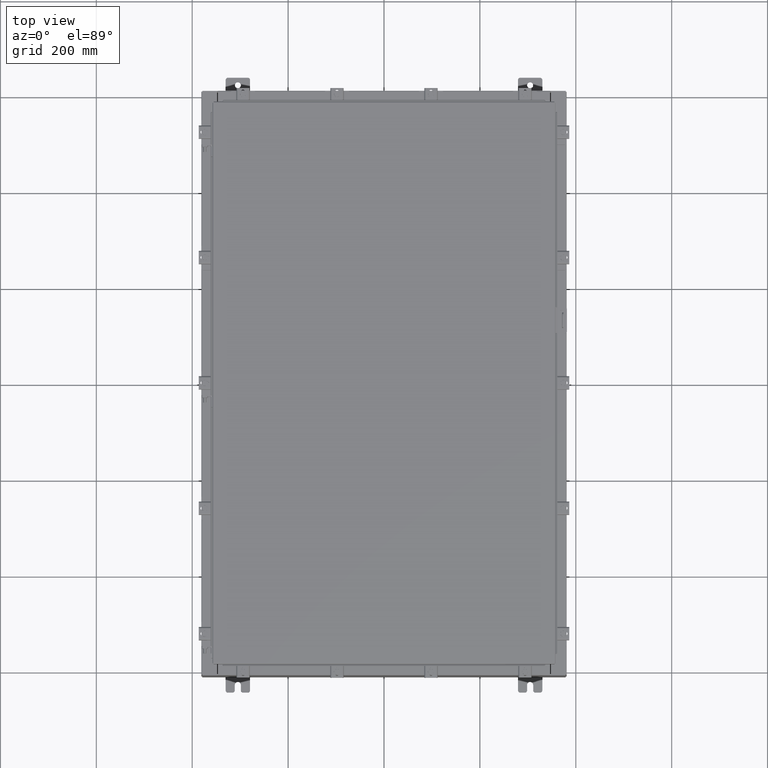
[diagram: clean part render]
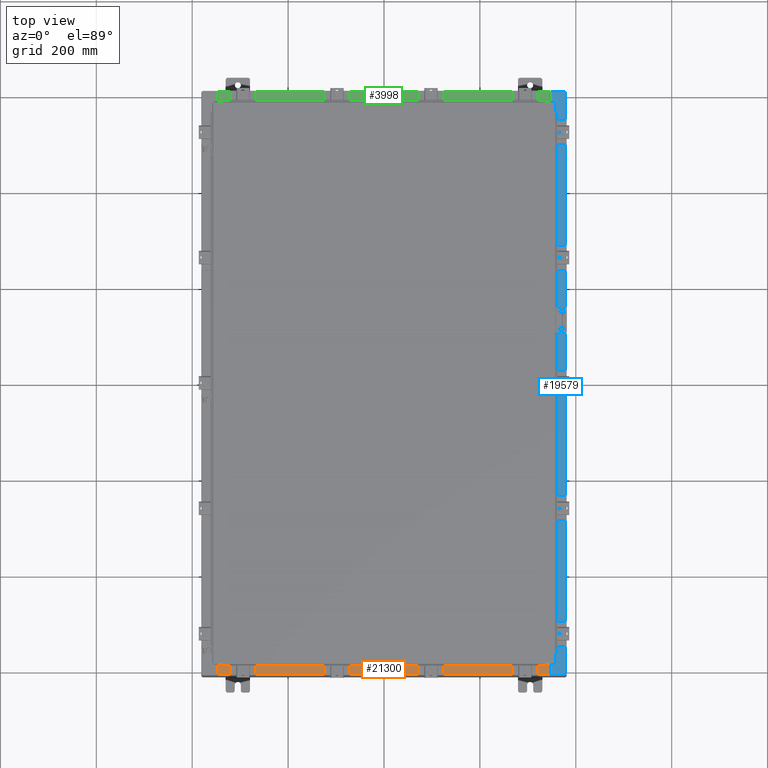
[diagram: same view with three faces highlighted in distinct colors, each labeled with its STEP entity id]
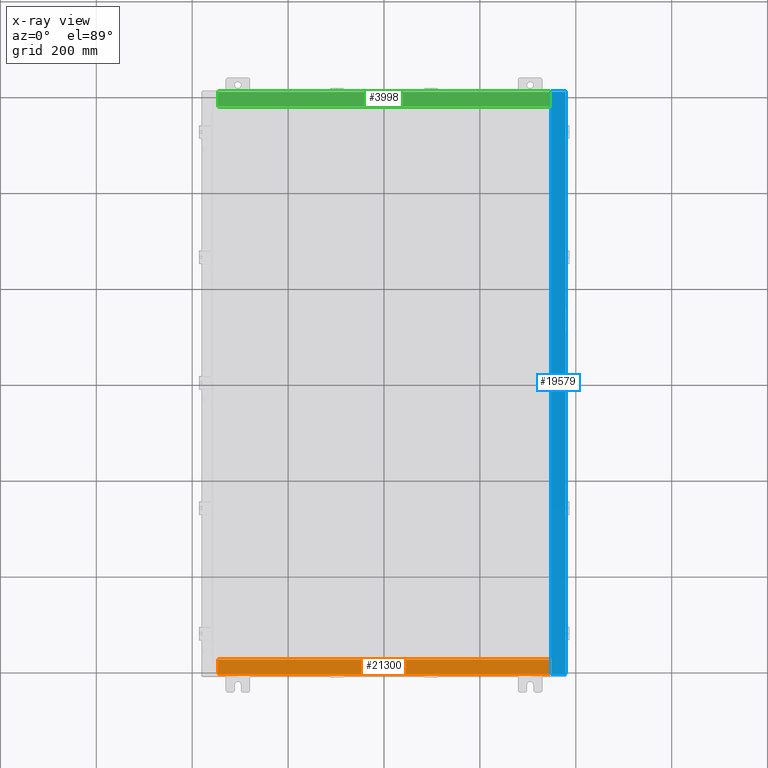
[diagram: x-ray of the same camera — body ghosted, the three highlighted faces saturated]
A machine part, top view with three faces highlighted in distinct colors.
The next image is the same camera in x-ray (body ghosted, the three faces saturated) — at least one of them is partly hidden behind the body in this view.
Their STEP definitions:

[orange] entity #21300 — the highlighted planar face has unit normal (-0, -0, 1).
#174 = ORIENTED_EDGE ( 'NONE', *, *, #24019, .T. ) ;
#1999 = PLANE ( 'NONE',  #18082 ) ;
#3920 = CARTESIAN_POINT ( 'NONE',  ( 0.0000000000000000000, 1.782631094477737600E-014, 5.000000000000000000 ) ) ;
#4639 = VECTOR ( 'NONE', #11397, 39.37007874015748100 ) ;
#4752 = ORIENTED_EDGE ( 'NONE', *, *, #20665, .F. ) ;
#4814 = ORIENTED_EDGE ( 'NONE', *, *, #16093, .F. ) ;
#4868 = CARTESIAN_POINT ( 'NONE',  ( 13.63719999999999800, -0.08770000000000047200, 5.000000000000000000 ) ) ;
#5735 = FACE_OUTER_BOUND ( 'NONE', #22186, .T. ) ;
#5840 = DIRECTION ( 'NONE',  ( 0.0000000000000000000, -1.000000000000000000, 3.566381192773190000E-015 ) ) ;
#6557 = DIRECTION ( 'NONE',  ( -1.000000000000000000, -4.006464660875052000E-017, 1.428858021605520200E-031 ) ) ;
#7538 = LINE ( 'NONE', #11648, #17029 ) ;
#7935 = DIRECTION ( 'NONE',  ( -0.0000000000000000000, 1.000000000000000000, -3.566381192773190000E-015 ) ) ;
#9066 = VERTEX_POINT ( 'NONE', #4868 ) ;
#9393 = EDGE_CURVE ( 'NONE', #16897, #24122, #9689, .T. ) ;
#9506 = CARTESIAN_POINT ( 'NONE',  ( 13.63719999999999800, -1.287299999999999900, 5.000000000000002700 ) ) ;
#9636 = LINE ( 'NONE', #16099, #24167 ) ;
#9689 = LINE ( 'NONE', #9506, #4639 ) ;
#11397 = DIRECTION ( 'NONE',  ( -1.000000000000000000, 0.0000000000000000000, 0.0000000000000000000 ) ) ;
#11648 = CARTESIAN_POINT ( 'NONE',  ( -13.63720000000000400, -0.07469999999999973900, 5.000000000000000000 ) ) ;
#12466 = CARTESIAN_POINT ( 'NONE',  ( 13.63719999999999800, -1.300299999999999800, 5.000000000000004400 ) ) ;
#12727 = LINE ( 'NONE', #12466, #17190 ) ;
#15958 = VERTEX_POINT ( 'NONE', #21632 ) ;
#16093 = EDGE_CURVE ( 'NONE', #9066, #16897, #12727, .T. ) ;
#16099 = CARTESIAN_POINT ( 'NONE',  ( 3.513669507588167300E-018, -0.08770000000000081900, 5.000000000000000000 ) ) ;
#16897 = VERTEX_POINT ( 'NONE', #23651 ) ;
#17029 = VECTOR ( 'NONE', #7935, 39.37007874015748100 ) ;
#17190 = VECTOR ( 'NONE', #23845, 39.37007874015748100 ) ;
#17194 = DIRECTION ( 'NONE',  ( 0.0000000000000000000, 3.566381192773190000E-015, 1.000000000000000000 ) ) ;
#18082 = AXIS2_PLACEMENT_3D ( 'NONE', #3920, #17194, #5840 ) ;
#19246 = ORIENTED_EDGE ( 'NONE', *, *, #9393, .F. ) ;
#20665 = EDGE_CURVE ( 'NONE', #24122, #15958, #7538, .T. ) ;
#21300 = ADVANCED_FACE ( 'NONE', ( #5735 ), #1999, .T. ) ;
#21632 = CARTESIAN_POINT ( 'NONE',  ( -13.63720000000000400, -0.08770000000000081900, 5.000000000000000000 ) ) ;
#22001 = CARTESIAN_POINT ( 'NONE',  ( -13.63720000000000400, -1.287299999999999200, 5.000000000000004400 ) ) ;
#22186 = EDGE_LOOP ( 'NONE', ( #4752, #19246, #4814, #174 ) ) ;
#23651 = CARTESIAN_POINT ( 'NONE',  ( 13.63719999999999800, -1.287299999999999900, 5.000000000000004400 ) ) ;
#23845 = DIRECTION ( 'NONE',  ( -0.0000000000000000000, -1.000000000000000000, 3.566381192773190000E-015 ) ) ;
#24019 = EDGE_CURVE ( 'NONE', #9066, #15958, #9636, .T. ) ;
#24122 = VERTEX_POINT ( 'NONE', #22001 ) ;
#24167 = VECTOR ( 'NONE', #6557, 39.37007874015748100 ) ;

[blue] entity #19579 — the highlighted planar face has unit normal (-0, 0, -1).
#77 = AXIS2_PLACEMENT_3D ( 'NONE', #24269, #1527, #14832 ) ;
#471 = ORIENTED_EDGE ( 'NONE', *, *, #4182, .F. ) ;
#484 = EDGE_CURVE ( 'NONE', #8398, #13338, #16905, .T. ) ;
#583 = VECTOR ( 'NONE', #5502, 39.37007874015748100 ) ;
#1239 = LINE ( 'NONE', #9649, #15827 ) ;
#1527 = DIRECTION ( 'NONE',  ( -5.349571789159788500E-015, 0.0000000000000000000, -1.000000000000000000 ) ) ;
#1546 = EDGE_CURVE ( 'NONE', #21487, #17712, #14189, .T. ) ;
#1666 = VECTOR ( 'NONE', #23359, 39.37007874015748100 ) ;
#1700 = ORIENTED_EDGE ( 'NONE', *, *, #1546, .F. ) ;
#2216 = EDGE_CURVE ( 'NONE', #17405, #6308, #6729, .T. ) ;
#2451 = DIRECTION ( 'NONE',  ( 5.349571789159788500E-015, 0.0000000000000000000, 1.000000000000000000 ) ) ;
#2878 = CARTESIAN_POINT ( 'NONE',  ( 13.69970000000003400, -23.92529999999998200, 9.925300000000008900 ) ) ;
#3931 = VERTEX_POINT ( 'NONE', #14993 ) ;
#4182 = EDGE_CURVE ( 'NONE', #6308, #7234, #16441, .T. ) ;
#4317 = ORIENTED_EDGE ( 'NONE', *, *, #2216, .F. ) ;
#4354 = CARTESIAN_POINT ( 'NONE',  ( 13.69970000000003400, -4.389053564852444200E-030, 9.925300000000008900 ) ) ;
#4975 = DIRECTION ( 'NONE',  ( 1.000000000000000000, -3.566381192773192400E-015, -5.349571789159789300E-015 ) ) ;
#5236 = VECTOR ( 'NONE', #18831, 39.37007874015748100 ) ;
#5388 = VECTOR ( 'NONE', #6521, 39.37007874015748100 ) ;
#5502 = DIRECTION ( 'NONE',  ( -0.0000000000000000000, -1.000000000000000000, -0.0000000000000000000 ) ) ;
#5659 = LINE ( 'NONE', #4354, #15163 ) ;
#6037 = CARTESIAN_POINT ( 'NONE',  ( 13.75005000000003500, 22.63109999999997900, 9.925300000000008900 ) ) ;
#6308 = VERTEX_POINT ( 'NONE', #12019 ) ;
#6521 = DIRECTION ( 'NONE',  ( -0.0000000000000000000, 1.000000000000000000, -0.0000000000000000000 ) ) ;
#6725 = CARTESIAN_POINT ( 'NONE',  ( 13.69970000000003400, 23.92529999999998900, 9.925300000000008900 ) ) ;
#6729 = LINE ( 'NONE', #15725, #1666 ) ;
#7095 = EDGE_CURVE ( 'NONE', #3931, #17405, #16066, .T. ) ;
#7234 = VERTEX_POINT ( 'NONE', #8778 ) ;
#7287 = CARTESIAN_POINT ( 'NONE',  ( 13.69970000000003400, 22.63109999999997900, 9.925300000000008900 ) ) ;
#7803 = CARTESIAN_POINT ( 'NONE',  ( 14.91230000000003400, -23.92529999999998600, 9.925300000000001800 ) ) ;
#7948 = DIRECTION ( 'NONE',  ( -1.000000000000000000, 0.0000000000000000000, 0.0000000000000000000 ) ) ;
#8168 = FACE_OUTER_BOUND ( 'NONE', #8241, .T. ) ;
#8241 = EDGE_LOOP ( 'NONE', ( #11367, #16260, #11688, #17817, #20220, #10416, #20279, #471, #4317, #12949, #21361, #1700 ) ) ;
#8293 = AXIS2_PLACEMENT_3D ( 'NONE', #21453, #10075, #23362 ) ;
#8398 = VERTEX_POINT ( 'NONE', #2878 ) ;
#8778 = CARTESIAN_POINT ( 'NONE',  ( 13.75005000000003500, 22.63109999999997900, 9.925300000000008900 ) ) ;
#8966 = VERTEX_POINT ( 'NONE', #23539 ) ;
#9556 = LINE ( 'NONE', #17828, #19078 ) ;
#9574 = VECTOR ( 'NONE', #7948, 39.37007874015748100 ) ;
#9649 = CARTESIAN_POINT ( 'NONE',  ( 5.335691853495967900E-014, 23.92529999999998900, 9.925300000000083500 ) ) ;
#10075 = DIRECTION ( 'NONE',  ( 5.349571789159788500E-015, 0.0000000000000000000, 1.000000000000000000 ) ) ;
#10416 = ORIENTED_EDGE ( 'NONE', *, *, #14511, .T. ) ;
#10650 = VERTEX_POINT ( 'NONE', #7287 ) ;
#11005 = PLANE ( 'NONE',  #77 ) ;
#11367 = ORIENTED_EDGE ( 'NONE', *, *, #16872, .F. ) ;
#11688 = ORIENTED_EDGE ( 'NONE', *, *, #484, .T. ) ;
#11837 = VECTOR ( 'NONE', #4975, 39.37007874015748100 ) ;
#12019 = CARTESIAN_POINT ( 'NONE',  ( 13.75005000000003500, 22.59374999999997900, 9.925300000000008900 ) ) ;
#12021 = EDGE_CURVE ( 'NONE', #7234, #10650, #19672, .T. ) ;
#12103 = DIRECTION ( 'NONE',  ( 1.000000000000000000, 0.0000000000000000000, 0.0000000000000000000 ) ) ;
#12949 = ORIENTED_EDGE ( 'NONE', *, *, #7095, .F. ) ;
#13338 = VERTEX_POINT ( 'NONE', #7803 ) ;
#13341 = VECTOR ( 'NONE', #12103, 39.37007874015748100 ) ;
#13530 = EDGE_CURVE ( 'NONE', #17712, #3931, #9556, .T. ) ;
#13598 = CARTESIAN_POINT ( 'NONE',  ( 13.71270000000003700, 22.59374999999997900, 9.925300000000008900 ) ) ;
#13840 = CARTESIAN_POINT ( 'NONE',  ( 13.75005000000003500, -22.61242499999997700, 9.925300000000008900 ) ) ;
#14078 = CARTESIAN_POINT ( 'NONE',  ( 13.71270000000003700, -22.59374999999997900, 9.925300000000008900 ) ) ;
#14189 = CIRCLE ( 'NONE', #21936, 0.01867499999999949400 ) ;
#14511 = EDGE_CURVE ( 'NONE', #24054, #10650, #5659, .T. ) ;
#14832 = DIRECTION ( 'NONE',  ( -1.000000000000000000, 0.0000000000000000000, 5.349571789159788500E-015 ) ) ;
#14906 = EDGE_CURVE ( 'NONE', #17066, #13338, #15185, .T. ) ;
#14993 = CARTESIAN_POINT ( 'NONE',  ( 13.71270000000003700, -22.59374999999997900, 9.925300000000008900 ) ) ;
#15163 = VECTOR ( 'NONE', #17699, 39.37007874015748100 ) ;
#15185 = LINE ( 'NONE', #18780, #583 ) ;
#15336 = LINE ( 'NONE', #20646, #5236 ) ;
#15725 = CARTESIAN_POINT ( 'NONE',  ( 13.71270000000003700, 22.59374999999997900, 9.925300000000008900 ) ) ;
#15751 = DIRECTION ( 'NONE',  ( 1.000000000000000000, 0.0000000000000000000, 0.0000000000000000000 ) ) ;
#15827 = VECTOR ( 'NONE', #21030, 39.37007874015748100 ) ;
#16066 = LINE ( 'NONE', #14078, #5388 ) ;
#16260 = ORIENTED_EDGE ( 'NONE', *, *, #22904, .T. ) ;
#16441 = CIRCLE ( 'NONE', #8293, 0.01867499999999949400 ) ;
#16872 = EDGE_CURVE ( 'NONE', #8966, #21487, #23446, .T. ) ;
#16905 = LINE ( 'NONE', #20160, #11837 ) ;
#17066 = VERTEX_POINT ( 'NONE', #24055 ) ;
#17405 = VERTEX_POINT ( 'NONE', #13598 ) ;
#17684 = CARTESIAN_POINT ( 'NONE',  ( 13.75005000000003500, -22.63109999999997900, 9.925300000000008900 ) ) ;
#17699 = DIRECTION ( 'NONE',  ( -3.203758888773075000E-031, -1.000000000000000000, 1.713873817065035400E-045 ) ) ;
#17712 = VERTEX_POINT ( 'NONE', #22131 ) ;
#17817 = ORIENTED_EDGE ( 'NONE', *, *, #14906, .F. ) ;
#17828 = CARTESIAN_POINT ( 'NONE',  ( 13.75005000000003500, -22.59374999999997900, 9.925300000000008900 ) ) ;
#18780 = CARTESIAN_POINT ( 'NONE',  ( 14.91230000000003400, -23.92529999999998200, 9.925300000000001800 ) ) ;
#18831 = DIRECTION ( 'NONE',  ( -3.203758888773075000E-031, -1.000000000000000000, 1.713873817065035400E-045 ) ) ;
#19078 = VECTOR ( 'NONE', #23481, 39.37007874015748100 ) ;
#19579 = ADVANCED_FACE ( 'NONE', ( #8168 ), #11005, .F. ) ;
#19601 = CARTESIAN_POINT ( 'NONE',  ( 13.69970000000003400, -22.63109999999997900, 9.925300000000008900 ) ) ;
#19672 = LINE ( 'NONE', #6037, #9574 ) ;
#20160 = CARTESIAN_POINT ( 'NONE',  ( -3.196982141649654200E-014, -23.92529999999993300, 9.925300000000083500 ) ) ;
#20220 = ORIENTED_EDGE ( 'NONE', *, *, #21315, .T. ) ;
#20279 = ORIENTED_EDGE ( 'NONE', *, *, #12021, .F. ) ;
#20646 = CARTESIAN_POINT ( 'NONE',  ( 13.69970000000003400, -4.389053564852444200E-030, 9.925300000000008900 ) ) ;
#21030 = DIRECTION ( 'NONE',  ( -1.000000000000000000, 0.0000000000000000000, 5.349571789159789300E-015 ) ) ;
#21315 = EDGE_CURVE ( 'NONE', #17066, #24054, #1239, .T. ) ;
#21361 = ORIENTED_EDGE ( 'NONE', *, *, #13530, .F. ) ;
#21453 = CARTESIAN_POINT ( 'NONE',  ( 13.75005000000003500, 22.61242499999997700, 9.925300000000008900 ) ) ;
#21487 = VERTEX_POINT ( 'NONE', #17684 ) ;
#21936 = AXIS2_PLACEMENT_3D ( 'NONE', #13840, #2451, #15751 ) ;
#22131 = CARTESIAN_POINT ( 'NONE',  ( 13.75005000000003500, -22.59374999999997900, 9.925300000000008900 ) ) ;
#22904 = EDGE_CURVE ( 'NONE', #8966, #8398, #15336, .T. ) ;
#23359 = DIRECTION ( 'NONE',  ( 1.000000000000000000, 0.0000000000000000000, 0.0000000000000000000 ) ) ;
#23362 = DIRECTION ( 'NONE',  ( 1.000000000000000000, 0.0000000000000000000, 0.0000000000000000000 ) ) ;
#23446 = LINE ( 'NONE', #19601, #13341 ) ;
#23481 = DIRECTION ( 'NONE',  ( -1.000000000000000000, 0.0000000000000000000, 0.0000000000000000000 ) ) ;
#23539 = CARTESIAN_POINT ( 'NONE',  ( 13.69970000000003400, -22.63109999999997900, 9.925300000000008900 ) ) ;
#24054 = VERTEX_POINT ( 'NONE', #6725 ) ;
#24055 = CARTESIAN_POINT ( 'NONE',  ( 14.91230000000003400, 23.92529999999998600, 9.925300000000001800 ) ) ;
#24269 = CARTESIAN_POINT ( 'NONE',  ( 5.335691853495967900E-014, 0.0000000000000000000, 9.925300000000083500 ) ) ;

[green] entity #3998 — the highlighted planar face has unit normal (0, 0, 1).
#269 = VERTEX_POINT ( 'NONE', #7794 ) ;
#1951 = VECTOR ( 'NONE', #16656, 39.37007874015748100 ) ;
#2326 = LINE ( 'NONE', #24462, #11247 ) ;
#3468 = LINE ( 'NONE', #7940, #8520 ) ;
#3780 = CARTESIAN_POINT ( 'NONE',  ( 0.0000000000000000000, 1.782631094477737600E-014, 5.000000000000000000 ) ) ;
#3863 = DIRECTION ( 'NONE',  ( 0.0000000000000000000, 3.566381192773190000E-015, 1.000000000000000000 ) ) ;
#3998 = ADVANCED_FACE ( 'NONE', ( #14382 ), #7600, .T. ) ;
#5565 = DIRECTION ( 'NONE',  ( -1.000000000000000000, 0.0000000000000000000, 0.0000000000000000000 ) ) ;
#7600 = PLANE ( 'NONE',  #16393 ) ;
#7759 = CARTESIAN_POINT ( 'NONE',  ( 13.63719999999999800, -1.287299999999999900, 5.000000000000004400 ) ) ;
#7794 = CARTESIAN_POINT ( 'NONE',  ( -13.63720000000000400, -0.08770000000000081900, 5.000000000000000000 ) ) ;
#7940 = CARTESIAN_POINT ( 'NONE',  ( -13.63720000000000400, -0.07469999999999973900, 5.000000000000000000 ) ) ;
#8520 = VECTOR ( 'NONE', #11742, 39.37007874015748100 ) ;
#8950 = EDGE_CURVE ( 'NONE', #19750, #269, #3468, .T. ) ;
#11247 = VECTOR ( 'NONE', #5565, 39.37007874015748100 ) ;
#11381 = EDGE_CURVE ( 'NONE', #16539, #269, #17020, .T. ) ;
#11742 = DIRECTION ( 'NONE',  ( -0.0000000000000000000, 1.000000000000000000, -3.566381192773190000E-015 ) ) ;
#13553 = CARTESIAN_POINT ( 'NONE',  ( 13.63719999999999800, -0.08770000000000047200, 5.000000000000000000 ) ) ;
#14121 = ORIENTED_EDGE ( 'NONE', *, *, #17226, .F. ) ;
#14382 = FACE_OUTER_BOUND ( 'NONE', #22107, .T. ) ;
#16393 = AXIS2_PLACEMENT_3D ( 'NONE', #3780, #3863, #17133 ) ;
#16539 = VERTEX_POINT ( 'NONE', #13553 ) ;
#16656 = DIRECTION ( 'NONE',  ( -0.0000000000000000000, -1.000000000000000000, 3.566381192773190000E-015 ) ) ;
#16740 = ORIENTED_EDGE ( 'NONE', *, *, #22804, .F. ) ;
#17020 = LINE ( 'NONE', #23167, #21488 ) ;
#17133 = DIRECTION ( 'NONE',  ( 0.0000000000000000000, -1.000000000000000000, 3.566381192773190000E-015 ) ) ;
#17226 = EDGE_CURVE ( 'NONE', #18030, #19750, #2326, .T. ) ;
#17703 = LINE ( 'NONE', #20483, #1951 ) ;
#18030 = VERTEX_POINT ( 'NONE', #7759 ) ;
#19354 = DIRECTION ( 'NONE',  ( -1.000000000000000000, -4.006464660875052000E-017, 1.428858021605520200E-031 ) ) ;
#19750 = VERTEX_POINT ( 'NONE', #20896 ) ;
#20345 = ORIENTED_EDGE ( 'NONE', *, *, #11381, .T. ) ;
#20483 = CARTESIAN_POINT ( 'NONE',  ( 13.63719999999999800, -1.300299999999999800, 5.000000000000004400 ) ) ;
#20896 = CARTESIAN_POINT ( 'NONE',  ( -13.63720000000000400, -1.287299999999999200, 5.000000000000004400 ) ) ;
#21488 = VECTOR ( 'NONE', #19354, 39.37007874015748100 ) ;
#22107 = EDGE_LOOP ( 'NONE', ( #22945, #14121, #16740, #20345 ) ) ;
#22804 = EDGE_CURVE ( 'NONE', #16539, #18030, #17703, .T. ) ;
#22945 = ORIENTED_EDGE ( 'NONE', *, *, #8950, .F. ) ;
#23167 = CARTESIAN_POINT ( 'NONE',  ( 3.513669507588167300E-018, -0.08770000000000081900, 5.000000000000000000 ) ) ;
#24462 = CARTESIAN_POINT ( 'NONE',  ( 13.63719999999999800, -1.287299999999999900, 5.000000000000002700 ) ) ;